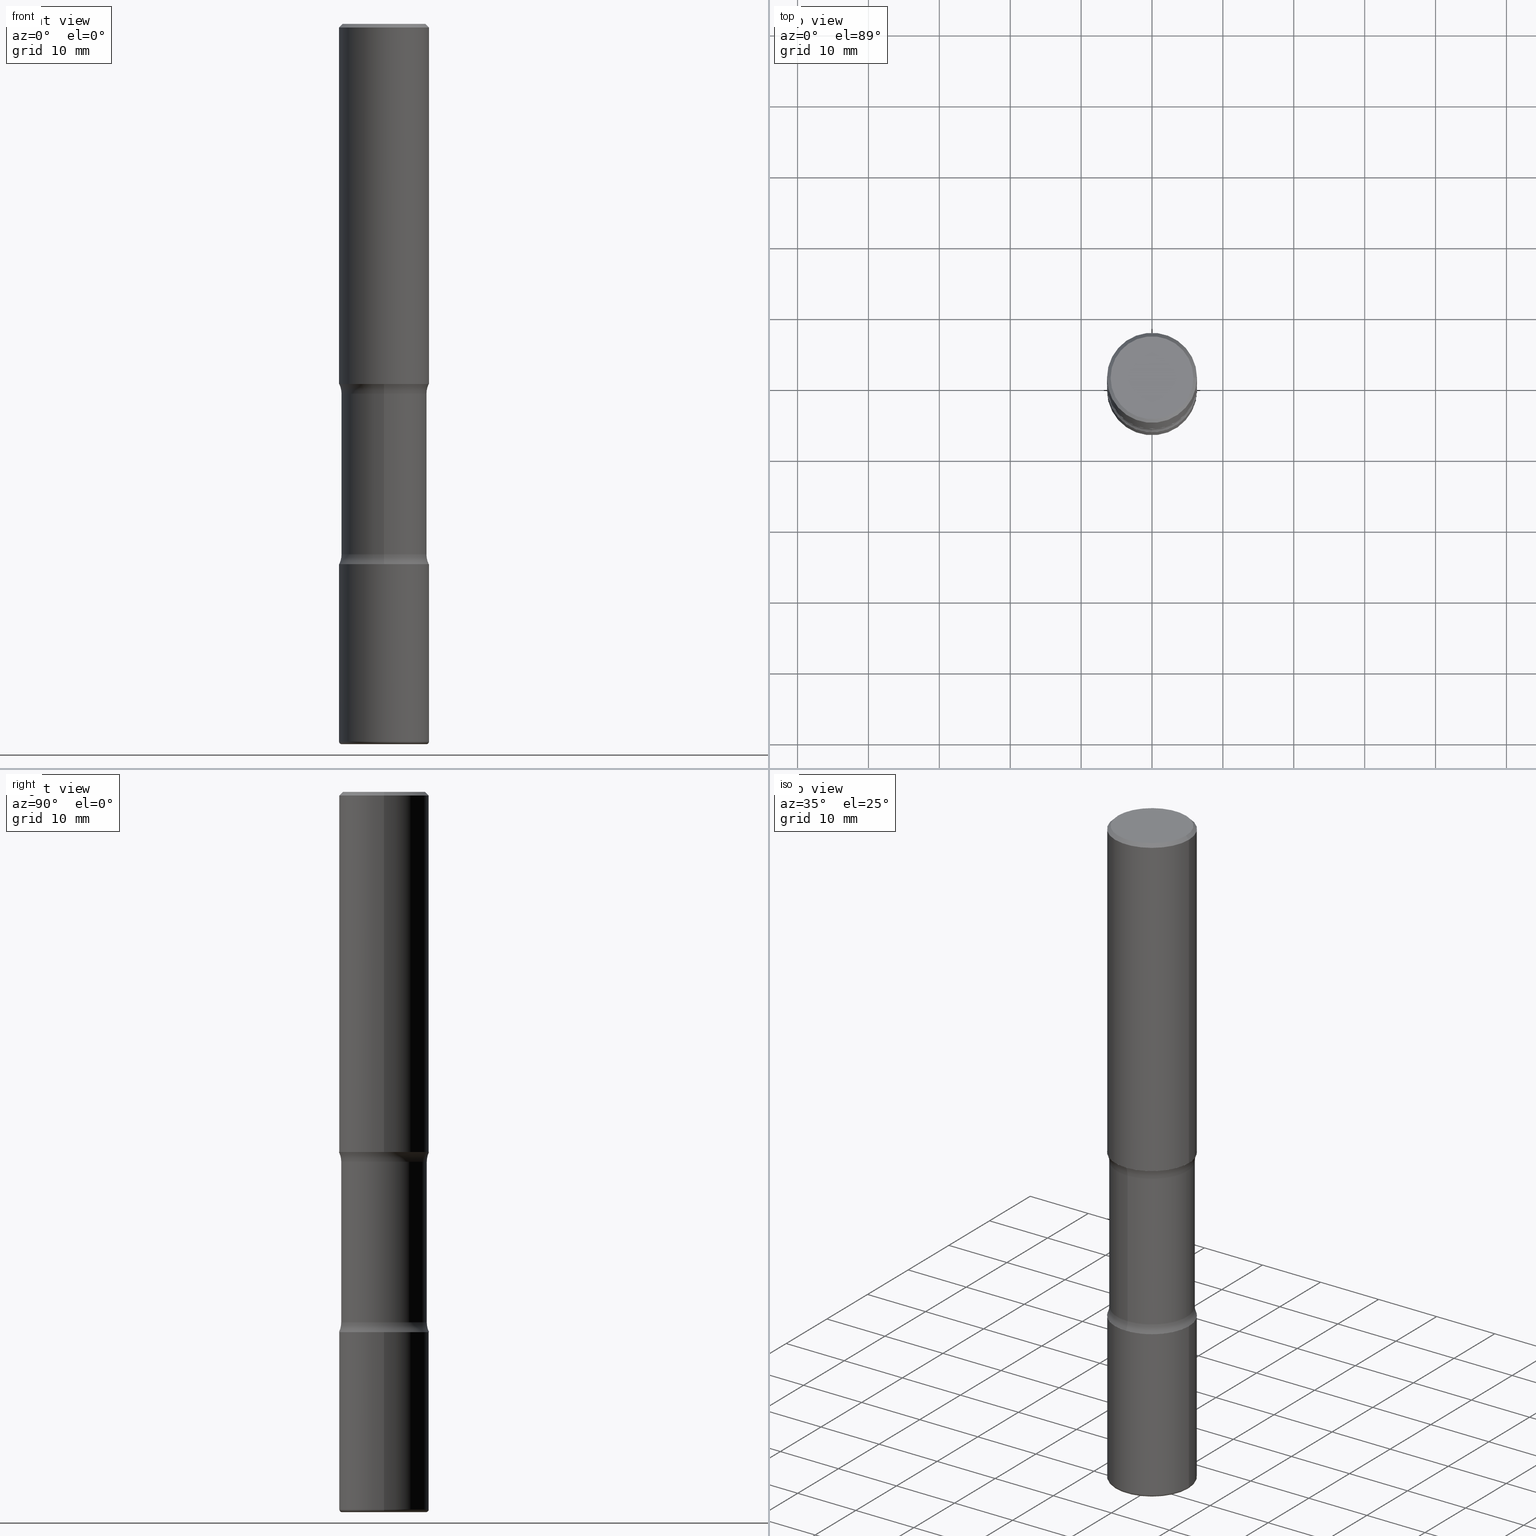
[diagram: canonical four-view strip — front | top / right | iso, engineering-drawing reading convention]
A machine part, canonical four-view strip (front | top / right | iso — engineering-drawing reading convention). The complete STEP part file that produces these views, byte-faithful:
ISO-10303-21;
HEADER;
FILE_DESCRIPTION (( 'STEP AP203' ),
    '1' );
FILE_NAME ('37874.STEP',
    '2024-03-02T00:57:38',
    ( '' ),
    ( '' ),
    'SwSTEP 2.0',
    'SolidWorks 2023',
    '' );
FILE_SCHEMA (( 'CONFIG_CONTROL_DESIGN' ));
ENDSEC;

DATA;
#1 = MANIFOLD_SOLID_BREP ( 'Body-Move/Copy2[4]', #127 ) ;
#2 = ORIENTED_EDGE ( 'NONE', *, *, #372, .T. ) ;
#3 = CARTESIAN_POINT ( 'NONE',  ( 7.203162026108633562E-29, -1.028420633753849345E-14, -2.945513763205741320 ) ) ;
#4 = EDGE_LOOP ( 'NONE', ( #295, #487 ) ) ;
#5 = CARTESIAN_POINT ( 'NONE',  ( 9.745193192647769069E-29, -1.391355313528993407E-14, -3.984999999999999876 ) ) ;
#6 = CARTESIAN_POINT ( 'NONE',  ( 4.890937612370289799E-31, -6.982962677686315028E-17, -0.02000000000000006981 ) ) ;
#7 = EDGE_LOOP ( 'NONE', ( #49, #353 ) ) ;
#8 = DIRECTION ( 'NONE',  ( 6.982962677686265133E-15, 1.000000000000000000, -2.300503573612010239E-15 ) ) ;
#9 = CARTESIAN_POINT ( 'NONE',  ( -0.2500000000000000555, 1.776356839400250859E-15, -1.229733772563726866E-29 ) ) ;
#10 = CIRCLE ( 'NONE', #166, 0.2500000000000003886 ) ;
#11 = ADVANCED_FACE ( 'NONE', ( #97 ), #377, .T. ) ;
#12 = VERTEX_POINT ( 'NONE', #188 ) ;
#13 = CC_DESIGN_APPROVAL ( #169, ( #401 ) ) ;
#14 = DIRECTION ( 'NONE',  ( 6.982962677686265133E-15, 1.000000000000000000, -2.300503573612010239E-15 ) ) ;
#15 = MECHANICAL_CONTEXT ( 'NONE', #539, 'mechanical' ) ;
#16 = ORIENTED_EDGE ( 'NONE', *, *, #181, .T. ) ;
#17 = ORIENTED_EDGE ( 'NONE', *, *, #351, .F. ) ;
#18 = EDGE_CURVE ( 'NONE', #55, #226, #100, .T. ) ;
#19 = AXIS2_PLACEMENT_3D ( 'NONE', #202, #198, #76 ) ;
#20 = ADVANCED_FACE ( 'NONE', ( #111 ), #194, .F. ) ;
#21 = SECURITY_CLASSIFICATION_LEVEL ( 'unclassified' ) ;
#22 = DIRECTION ( 'NONE',  ( 6.982962677686265922E-15, 1.000000000000000000, -3.369885892833230986E-15 ) ) ;
#23 = COORDINATED_UNIVERSAL_TIME_OFFSET ( 5, 0, .BEHIND. ) ;
#24 = CARTESIAN_POINT ( 'NONE',  ( 7.336406418555409790E-29, -1.047444401652943635E-14, -3.000000000000000444 ) ) ;
#25 = EDGE_CURVE ( 'NONE', #523, #381, #559, .T. ) ;
#26 = AXIS2_PLACEMENT_3D ( 'NONE', #307, #446, #453 ) ;
#27 = PERSON_AND_ORGANIZATION ( #412, #332 ) ;
#28 = CARTESIAN_POINT ( 'NONE',  ( 4.890937612370273194E-29, -6.982962677686291165E-15, -2.000000000000000000 ) ) ;
#29 = CARTESIAN_POINT ( 'NONE',  ( 7.198535619023675570E-29, -1.029083161580289368E-14, -2.945513763205741320 ) ) ;
#30 = PERSON_AND_ORGANIZATION ( #412, #332 ) ;
#31 = DIRECTION ( 'NONE',  ( -1.000000000000000000, 6.982962677686265922E-15, -4.883557194083112340E-29 ) ) ;
#32 = ORIENTED_EDGE ( 'NONE', *, *, #75, .F. ) ;
#33 = EDGE_CURVE ( 'NONE', #232, #40, #370, .T. ) ;
#34 = CARTESIAN_POINT ( 'NONE',  ( 4.890937612370273194E-29, -6.982962677686291165E-15, -2.000000000000000000 ) ) ;
#35 = DIRECTION ( 'NONE',  ( 7.105427357601001859E-15, 1.000000000000000000, -3.491481338843145583E-15 ) ) ;
#36 = CARTESIAN_POINT ( 'NONE',  ( -2.486930524192130572E-15, -0.3625000000000073164, -2.054486236794257792 ) ) ;
#37 = TOROIDAL_SURFACE ( 'NONE', #525, 0.3625000000000000999, 0.1250000000000000278 ) ;
#38 = DIRECTION ( 'NONE',  ( -2.445468806185136597E-29, 3.491481338843145583E-15, 1.000000000000000000 ) ) ;
#39 = FACE_OUTER_BOUND ( 'NONE', #4, .T. ) ;
#40 = VERTEX_POINT ( 'NONE', #267 ) ;
#41 = CARTESIAN_POINT ( 'NONE',  ( -0.2499999999999999167, 1.675911042644703182E-15, -0.02000000000000006981 ) ) ;
#42 = ADVANCED_FACE ( 'NONE', ( #458 ), #389, .F. ) ;
#43 = FACE_OUTER_BOUND ( 'NONE', #333, .T. ) ;
#44 = AXIS2_PLACEMENT_3D ( 'NONE', #29, #228, #407 ) ;
#45 = AXIS2_PLACEMENT_3D ( 'NONE', #5, #136, #486 ) ;
#46 = AXIS2_PLACEMENT_3D ( 'NONE', #93, #223, #302 ) ;
#47 = ORIENTED_EDGE ( 'NONE', *, *, #314, .T. ) ;
#48 = DIRECTION ( 'NONE',  ( -2.445468806185136597E-29, 3.491481338843145583E-15, 1.000000000000000000 ) ) ;
#49 = ORIENTED_EDGE ( 'NONE', *, *, #331, .F. ) ;
#50 = DIRECTION ( 'NONE',  ( 2.530378452311521502E-29, -3.369885892833230986E-15, -1.000000000000000000 ) ) ;
#51 = EDGE_CURVE ( 'NONE', #297, #151, #534, .T. ) ;
#52 = EDGE_LOOP ( 'NONE', ( #315, #439, #478, #344 ) ) ;
#53 = APPLICATION_PROTOCOL_DEFINITION ( 'international standard', 'config_control_design', 1994, #319 ) ;
#54 = CIRCLE ( 'NONE', #350, 0.1250000000000000000 ) ;
#55 = VERTEX_POINT ( 'NONE', #520 ) ;
#56 = LOCAL_TIME ( 19, 57, 38.00000000000000000, #364 ) ;
#57 = ORIENTED_EDGE ( 'NONE', *, *, #75, .T. ) ;
#58 = DIRECTION ( 'NONE',  ( 2.530378452311521502E-29, -3.369885892833230986E-15, -1.000000000000000000 ) ) ;
#59 = DIRECTION ( 'NONE',  ( 1.000000000000000000, 0.000000000000000000, 0.000000000000000000 ) ) ;
#60 = AXIS2_PLACEMENT_3D ( 'NONE', #219, #554, #345 ) ;
#61 = DIRECTION ( 'NONE',  ( 2.530378452311521502E-29, -3.369885892833230986E-15, -1.000000000000000000 ) ) ;
#62 = PERSON_AND_ORGANIZATION_ROLE ( 'creator' ) ;
#63 = DIRECTION ( 'NONE',  ( 6.982962677686265922E-15, 1.000000000000000000, -4.370956789862816416E-15 ) ) ;
#64 = EDGE_LOOP ( 'NONE', ( #87, #248, #135, #394 ) ) ;
#65 = VECTOR ( 'NONE', #325, 39.37007874015748143 ) ;
#66 = CIRCLE ( 'NONE', #252, 0.2500000000000002776 ) ;
#67 = DIRECTION ( 'NONE',  ( -6.982962677686266711E-15, -1.000000000000000000, 3.491481338843145583E-15 ) ) ;
#68 =( LENGTH_UNIT ( ) NAMED_UNIT ( * ) SI_UNIT ( $, .METRE. ) );
#69 = CC_DESIGN_PERSON_AND_ORGANIZATION_ASSIGNMENT ( #192, #62, ( #401 ) ) ;
#70 = COORDINATED_UNIVERSAL_TIME_OFFSET ( 5, 0, .BEHIND. ) ;
#71 = DIRECTION ( 'NONE',  ( -2.445468806185136597E-29, 3.491481338843145583E-15, 1.000000000000000000 ) ) ;
#72 = CARTESIAN_POINT ( 'NONE',  ( 1.745740669421641422E-15, 0.2499999999999897582, -3.000000000000000888 ) ) ;
#73 = ORIENTED_EDGE ( 'NONE', *, *, #513, .T. ) ;
#74 = DIRECTION ( 'NONE',  ( 1.000000000000000000, -6.982962677686267499E-15, 4.876176775795935793E-29 ) ) ;
#75 = EDGE_CURVE ( 'NONE', #226, #360, #442, .T. ) ;
#76 = DIRECTION ( 'NONE',  ( 1.000000000000000000, -6.982962677686267499E-15, 4.876176775795936353E-29 ) ) ;
#77 = DIRECTION ( 'NONE',  ( 2.445468806185136597E-29, -3.491481338843145583E-15, -1.000000000000000000 ) ) ;
#78 = ORIENTED_EDGE ( 'NONE', *, *, #558, .F. ) ;
#79 = CLOSED_SHELL ( 'NONE', ( #95, #11, #323, #452, #473, #20 ) ) ;
#80 = CARTESIAN_POINT ( 'NONE',  ( 0.2500000000000005551, -1.565929380471150390E-14, -3.984999999999999876 ) ) ;
#81 = AXIS2_PLACEMENT_3D ( 'NONE', #199, #162, #468 ) ;
#82 = CONICAL_SURFACE ( 'NONE', #536, 0.2499999999999999167, 0.7853981633974472798 ) ;
#83 = FACE_OUTER_BOUND ( 'NONE', #509, .T. ) ;
#84 = VERTEX_POINT ( 'NONE', #530 ) ;
#85 = CARTESIAN_POINT ( 'NONE',  ( 2.531323970661321775E-15, 0.3624999999999928280, -2.054486236794260012 ) ) ;
#86 = EDGE_CURVE ( 'NONE', #40, #475, #482, .T. ) ;
#87 = ORIENTED_EDGE ( 'NONE', *, *, #372, .F. ) ;
#88 = ORIENTED_EDGE ( 'NONE', *, *, #181, .F. ) ;
#89 = CIRCLE ( 'NONE', #81, 0.2499999999999999167 ) ;
#90 =( GEOMETRIC_REPRESENTATION_CONTEXT ( 3 ) GLOBAL_UNCERTAINTY_ASSIGNED_CONTEXT ( ( #309 ) ) GLOBAL_UNIT_ASSIGNED_CONTEXT ( ( #115, #335, #286 ) ) REPRESENTATION_CONTEXT ( 'NONE', 'WORKASPACE' ) );
#91 = DIRECTION ( 'NONE',  ( 1.000000000000000000, -6.982962677686265922E-15, 4.876176775795935793E-29 ) ) ;
#92 = ORIENTED_EDGE ( 'NONE', *, *, #104, .F. ) ;
#93 = CARTESIAN_POINT ( 'NONE',  ( 9.866784870866931853E-29, -1.384432990936266734E-14, -4.000000000000000000 ) ) ;
#94 = CARTESIAN_POINT ( 'NONE',  ( -0.2499999999999999167, 1.675911042644703182E-15, -0.02000000000000006981 ) ) ;
#95 = ADVANCED_FACE ( 'NONE', ( #402 ), #416, .T. ) ;
#96 = DIRECTION ( 'NONE',  ( -1.000000000000000000, 6.982962677686267499E-15, 0.000000000000000000 ) ) ;
#97 = FACE_OUTER_BOUND ( 'NONE', #52, .T. ) ;
#98 = ORIENTED_EDGE ( 'NONE', *, *, #104, .T. ) ;
#99 = DIRECTION ( 'NONE',  ( -6.982962677686265922E-15, -1.000000000000000000, 3.369885892833230592E-15 ) ) ;
#100 = CIRCLE ( 'NONE', #278, 0.2299999999999998990 ) ;
#101 = ORIENTED_EDGE ( 'NONE', *, *, #547, .F. ) ;
#102 = CARTESIAN_POINT ( 'NONE',  ( 9.866784870866931853E-29, -1.384432990936266734E-14, -4.000000000000000000 ) ) ;
#103 = CARTESIAN_POINT ( 'NONE',  ( 4.890937612370273194E-29, -6.982962677686291165E-15, -2.000000000000000000 ) ) ;
#104 = EDGE_CURVE ( 'NONE', #381, #523, #269, .T. ) ;
#105 = APPROVAL_STATUS ( 'not_yet_approved' ) ;
#106 = DIRECTION ( 'NONE',  ( 1.000000000000000000, -6.982962677686265133E-15, 4.883557194083112340E-29 ) ) ;
#107 = AXIS2_PLACEMENT_3D ( 'NONE', #273, #38, #508 ) ;
#108 = CIRCLE ( 'NONE', #292, 0.01500000000000038629 ) ;
#109 = CC_DESIGN_PERSON_AND_ORGANIZATION_ASSIGNMENT ( #507, #118, ( #187 ) ) ;
#110 = CALENDAR_DATE ( 2024, 1, 3 ) ;
#111 = FACE_OUTER_BOUND ( 'NONE', #491, .T. ) ;
#112 = CARTESIAN_POINT ( 'NONE',  ( 4.890937612370273194E-29, -6.982962677686291165E-15, -2.000000000000000000 ) ) ;
#113 = FACE_OUTER_BOUND ( 'NONE', #7, .T. ) ;
#114 = ADVANCED_FACE ( 'NONE', ( #113 ), #282, .F. ) ;
#115 =( CONVERSION_BASED_UNIT ( 'INCH', #347 ) LENGTH_UNIT ( ) NAMED_UNIT ( #177 ) );
#116 = AXIS2_PLACEMENT_3D ( 'NONE', #34, #548, #501 ) ;
#117 = AXIS2_PLACEMENT_3D ( 'NONE', #258, #160, #255 ) ;
#118 = PERSON_AND_ORGANIZATION_ROLE ( 'classification_officer' ) ;
#119 = CARTESIAN_POINT ( 'NONE',  ( 0.000000000000000000, 0.000000000000000000, 0.000000000000000000 ) ) ;
#120 = CARTESIAN_POINT ( 'NONE',  ( 1.606081415867840476E-15, 0.2299999999999998990, -8.030407079339231961E-16 ) ) ;
#121 = ORIENTED_EDGE ( 'NONE', *, *, #540, .T. ) ;
#122 = DIRECTION ( 'NONE',  ( 6.982962677686265922E-15, 1.000000000000000000, -3.369885892833230986E-15 ) ) ;
#123 = DIRECTION ( 'NONE',  ( 1.000000000000000000, -6.982962677686268288E-15, 0.000000000000000000 ) ) ;
#124 = ORIENTED_EDGE ( 'NONE', *, *, #348, .F. ) ;
#125 = DIRECTION ( 'NONE',  ( 2.530378452311521502E-29, -3.369885892833230986E-15, -1.000000000000000000 ) ) ;
#126 = DIRECTION ( 'NONE',  ( -1.000000000000000000, 7.105427357601066545E-15, 0.000000000000000000 ) ) ;
#127 = CLOSED_SHELL ( 'NONE', ( #441, #418, #42, #358, #114, #459, #304, #437 ) ) ;
#128 = CARTESIAN_POINT ( 'NONE',  ( 0.2500000000000000555, -1.745740669421567269E-15, 1.219044193948984228E-29 ) ) ;
#129 = EDGE_CURVE ( 'NONE', #55, #12, #159, .T. ) ;
#130 = LOCAL_TIME ( 19, 57, 38.00000000000000000, #23 ) ;
#131 = ORIENTED_EDGE ( 'NONE', *, *, #196, .T. ) ;
#132 = ORIENTED_EDGE ( 'NONE', *, *, #249, .F. ) ;
#133 = EDGE_LOOP ( 'NONE', ( #209, #47, #220, #101 ) ) ;
#134 = AXIS2_PLACEMENT_3D ( 'NONE', #6, #470, #296 ) ;
#135 = ORIENTED_EDGE ( 'NONE', *, *, #387, .T. ) ;
#136 = DIRECTION ( 'NONE',  ( -2.445468806185136597E-29, 3.491481338843145583E-15, 1.000000000000000000 ) ) ;
#137 = PERSON_AND_ORGANIZATION_ROLE ( 'design_owner' ) ;
#138 = ORIENTED_EDGE ( 'NONE', *, *, #33, .F. ) ;
#139 = DIRECTION ( 'NONE',  ( 2.530378452311521502E-29, -3.369885892833230986E-15, -1.000000000000000000 ) ) ;
#140 = DIRECTION ( 'NONE',  ( 0.000000000000000000, 0.000000000000000000, 1.000000000000000000 ) ) ;
#141 = AXIS2_PLACEMENT_3D ( 'NONE', #339, #168, #386 ) ;
#142 = ORIENTED_EDGE ( 'NONE', *, *, #33, .T. ) ;
#143 = CIRCLE ( 'NONE', #178, 0.2500000000000003886 ) ;
#144 = DIRECTION ( 'NONE',  ( 2.438088387897960049E-29, -3.491481338843145188E-15, -1.000000000000000000 ) ) ;
#145 = EDGE_CURVE ( 'NONE', #483, #297, #506, .T. ) ;
#146 = DATE_AND_TIME ( #497, #217 ) ;
#147 = AXIS2_PLACEMENT_3D ( 'NONE', #28, #503, #91 ) ;
#148 = CIRCLE ( 'NONE', #428, 0.2350000000000003753 ) ;
#149 = CARTESIAN_POINT ( 'NONE',  ( 0.2500000000000003331, -1.745740669421569044E-15, 1.219044193948985630E-29 ) ) ;
#150 = PRODUCT_DEFINITION_SHAPE ( 'NONE', 'NONE',  #401 ) ;
#151 = VERTEX_POINT ( 'NONE', #330 ) ;
#152 = EDGE_CURVE ( 'NONE', #360, #12, #89, .T. ) ;
#153 = FACE_OUTER_BOUND ( 'NONE', #448, .T. ) ;
#154 = DIRECTION ( 'NONE',  ( -2.445468806185136597E-29, 3.491481338843145583E-15, 1.000000000000000000 ) ) ;
#155 = CARTESIAN_POINT ( 'NONE',  ( -0.2500000000000001665, -1.750039312831323809E-15, -2.000000000000000000 ) ) ;
#156 = ORIENTED_EDGE ( 'NONE', *, *, #86, .T. ) ;
#157 = CIRCLE ( 'NONE', #281, 0.2500000000000002776 ) ;
#158 = CC_DESIGN_SECURITY_CLASSIFICATION ( #187, ( #321 ) ) ;
#159 = LINE ( 'NONE', #545, #517 ) ;
#160 = DIRECTION ( 'NONE',  ( 2.445468806185136597E-29, -3.491481338843145583E-15, -1.000000000000000000 ) ) ;
#161 = FACE_OUTER_BOUND ( 'NONE', #173, .T. ) ;
#162 = DIRECTION ( 'NONE',  ( -2.445468806185136597E-29, 3.491481338843145583E-15, 1.000000000000000000 ) ) ;
#163 = CARTESIAN_POINT ( 'NONE',  ( 7.198535619023675570E-29, -1.029083161580289368E-14, -2.945513763205741320 ) ) ;
#164 = ORIENTED_EDGE ( 'NONE', *, *, #25, .F. ) ;
#165 = DIRECTION ( 'NONE',  ( -6.982962677686266711E-15, -1.000000000000000000, 0.000000000000000000 ) ) ;
#166 = AXIS2_PLACEMENT_3D ( 'NONE', #455, #61, #324 ) ;
#167 = ORIENTED_EDGE ( 'NONE', *, *, #513, .F. ) ;
#168 = DIRECTION ( 'NONE',  ( 2.438088387897960049E-29, -3.491481338843145188E-15, -1.000000000000000000 ) ) ;
#169 = APPROVAL ( #355, 'UNSPECIFIED' ) ;
#170 = VERTEX_POINT ( 'NONE', #238 ) ;
#171 = CYLINDRICAL_SURFACE ( 'NONE', #397, 0.2500000000000000555 ) ;
#172 = CARTESIAN_POINT ( 'NONE',  ( 1.658453635950538436E-15, 0.2374999999999928557, -2.054486236794259568 ) ) ;
#173 = EDGE_LOOP ( 'NONE', ( #98, #376, #17, #124 ) ) ;
#174 = EDGE_CURVE ( 'NONE', #444, #385, #414, .T. ) ;
#175 = DIRECTION ( 'NONE',  ( 2.530378452311521502E-29, -3.369885892833230986E-15, -1.000000000000000000 ) ) ;
#176 = AXIS2_PLACEMENT_3D ( 'NONE', #85, #210, #165 ) ;
#177 = DIMENSIONAL_EXPONENTS ( 1.000000000000000000, 0.000000000000000000, 0.000000000000000000, 0.000000000000000000, 0.000000000000000000, 0.000000000000000000, 0.000000000000000000 ) ;
#178 = AXIS2_PLACEMENT_3D ( 'NONE', #438, #48, #440 ) ;
#179 = ORIENTED_EDGE ( 'NONE', *, *, #314, .F. ) ;
#180 = ORIENTED_EDGE ( 'NONE', *, *, #275, .F. ) ;
#181 = EDGE_CURVE ( 'NONE', #483, #183, #66, .T. ) ;
#182 = MANIFOLD_SOLID_BREP ( 'Body-Move/Copy2[2]', #366 ) ;
#183 = VERTEX_POINT ( 'NONE', #419 ) ;
#184 = DIRECTION ( 'NONE',  ( 6.982962677686265133E-15, 1.000000000000000000, -3.450755360418014766E-15 ) ) ;
#185 = MANIFOLD_SOLID_BREP ( 'Body-Move/Copy2[1]', #79 ) ;
#186 = CIRCLE ( 'NONE', #176, 0.1250000000000000000 ) ;
#187 = SECURITY_CLASSIFICATION ( '', '', #21 ) ;
#188 = CARTESIAN_POINT ( 'NONE',  ( 0.2499999999999999167, -1.784954126219745400E-15, -0.02000000000000006981 ) ) ;
#189 = EDGE_CURVE ( 'NONE', #444, #346, #367, .T. ) ;
#190 = CARTESIAN_POINT ( 'NONE',  ( 0.000000000000000000, 0.000000000000000000, 0.000000000000000000 ) ) ;
#191 = APPROVAL_ROLE ( '' ) ;
#192 = PERSON_AND_ORGANIZATION ( #412, #332 ) ;
#193 = DIRECTION ( 'NONE',  ( 1.000000000000000000, -6.982962677686266711E-15, 4.876176775795935793E-29 ) ) ;
#194 = PLANE ( 'NONE',  #413 ) ;
#195 = AXIS2_PLACEMENT_3D ( 'NONE', #190, #140, #59 ) ;
#196 = EDGE_CURVE ( 'NONE', #475, #40, #157, .T. ) ;
#197 = APPROVAL_ROLE ( '' ) ;
#198 = DIRECTION ( 'NONE',  ( -2.445468806185136597E-29, 3.491481338843145583E-15, 1.000000000000000000 ) ) ;
#199 = CARTESIAN_POINT ( 'NONE',  ( 4.890937612370289799E-31, -6.982962677686315028E-17, -0.02000000000000006981 ) ) ;
#200 = DIRECTION ( 'NONE',  ( 2.438088387897960049E-29, -3.491481338843145188E-15, -1.000000000000000000 ) ) ;
#201 = ORIENTED_EDGE ( 'NONE', *, *, #189, .F. ) ;
#202 = CARTESIAN_POINT ( 'NONE',  ( 0.000000000000000000, 0.000000000000000000, 0.000000000000000000 ) ) ;
#203 = CARTESIAN_POINT ( 'NONE',  ( -2.486930524192108484E-15, -0.3625000000000104250, -2.945513763205740432 ) ) ;
#204 = TOROIDAL_SURFACE ( 'NONE', #445, 0.3625000000000000999, 0.1250000000000000278 ) ;
#205 = DIRECTION ( 'NONE',  ( 2.530378452311521502E-29, -3.369885892833230986E-15, -1.000000000000000000 ) ) ;
#206 = LINE ( 'NONE', #149, #543 ) ;
#207 = CC_DESIGN_PERSON_AND_ORGANIZATION_ASSIGNMENT ( #30, #329, ( #321 ) ) ;
#208 = CYLINDRICAL_SURFACE ( 'NONE', #398, 0.2500000000000003331 ) ;
#209 = ORIENTED_EDGE ( 'NONE', *, *, #449, .T. ) ;
#210 = DIRECTION ( 'NONE',  ( -1.000000000000000000, 6.982962677686265922E-15, -4.883557194083112340E-29 ) ) ;
#211 = EDGE_LOOP ( 'NONE', ( #179, #225, #421, #430 ) ) ;
#212 = EDGE_CURVE ( 'NONE', #226, #55, #216, .T. ) ;
#213 = DIRECTION ( 'NONE',  ( 6.982962677686265922E-15, 1.000000000000000000, -3.369885892833230986E-15 ) ) ;
#214 = AXIS2_PLACEMENT_3D ( 'NONE', #236, #417, #22 ) ;
#215 = ADVANCED_FACE ( 'NONE', ( #422 ), #379, .T. ) ;
#216 = CIRCLE ( 'NONE', #19, 0.2299999999999998990 ) ;
#217 = LOCAL_TIME ( 19, 57, 38.00000000000000000, #70 ) ;
#218 = ORIENTED_EDGE ( 'NONE', *, *, #196, .F. ) ;
#219 = CARTESIAN_POINT ( 'NONE',  ( 4.806027966243888288E-29, -7.104558123696206156E-15, -2.000000000000000000 ) ) ;
#220 = ORIENTED_EDGE ( 'NONE', *, *, #51, .F. ) ;
#221 = CARTESIAN_POINT ( 'NONE',  ( -1.715124499442836348E-15, -0.2500000000000074385, -1.999999999999999112 ) ) ;
#222 = ORIENTED_EDGE ( 'NONE', *, *, #152, .T. ) ;
#223 = DIRECTION ( 'NONE',  ( 2.530378452311521502E-29, -3.369885892833230986E-15, -1.000000000000000000 ) ) ;
#224 = AXIS2_PLACEMENT_3D ( 'NONE', #374, #154, #123 ) ;
#225 = ORIENTED_EDGE ( 'NONE', *, *, #393, .T. ) ;
#226 = VERTEX_POINT ( 'NONE', #555 ) ;
#227 = CARTESIAN_POINT ( 'NONE',  ( 4.943898765775623630E-29, -7.288170524422749615E-15, -2.054486236794258680 ) ) ;
#228 = DIRECTION ( 'NONE',  ( 2.530378452311521502E-29, -3.369885892833230986E-15, -1.000000000000000000 ) ) ;
#229 = VECTOR ( 'NONE', #247, 39.37007874015748143 ) ;
#230 = CALENDAR_DATE ( 2024, 1, 3 ) ;
#231 = DIRECTION ( 'NONE',  ( 1.000000000000000000, -6.982962677686265922E-15, 0.000000000000000000 ) ) ;
#232 = VERTEX_POINT ( 'NONE', #549 ) ;
#233 = CARTESIAN_POINT ( 'NONE',  ( 7.336406418555409790E-29, -1.047444401652943635E-14, -3.000000000000000444 ) ) ;
#234 = DATE_AND_TIME ( #276, #56 ) ;
#235 = PLANE ( 'NONE',  #147 ) ;
#236 = CARTESIAN_POINT ( 'NONE',  ( 4.976491023364875751E-29, -7.241496556518841686E-15, -2.054486236794258680 ) ) ;
#237 = CIRCLE ( 'NONE', #60, 0.2500000000000003886 ) ;
#238 = CARTESIAN_POINT ( 'NONE',  ( 1.745740669421617165E-15, 0.2499999999999933109, -2.000000000000000888 ) ) ;
#239 = DIRECTION ( 'NONE',  ( 2.530378452311521502E-29, -3.369885892833230986E-15, -1.000000000000000000 ) ) ;
#240 = CARTESIAN_POINT ( 'NONE',  ( 4.890937612370289799E-31, -6.982962677686315028E-17, -0.02000000000000006981 ) ) ;
#241 = CARTESIAN_POINT ( 'NONE',  ( 0.000000000000000000, 0.000000000000000000, 0.000000000000000000 ) ) ;
#242 = EDGE_CURVE ( 'NONE', #385, #232, #560, .T. ) ;
#243 = DESIGN_CONTEXT ( 'detailed design', #319, 'design' ) ;
#244 = DIRECTION ( 'NONE',  ( -2.445468806185136597E-29, 3.491481338843145583E-15, 1.000000000000000000 ) ) ;
#245 = AXIS2_PLACEMENT_3D ( 'NONE', #306, #488, #99 ) ;
#246 = VECTOR ( 'NONE', #553, 39.37007874015748143 ) ;
#247 = DIRECTION ( 'NONE',  ( -2.445468806185136877E-29, 3.491481338843145188E-15, 1.000000000000000000 ) ) ;
#248 = ORIENTED_EDGE ( 'NONE', *, *, #449, .F. ) ;
#249 = EDGE_CURVE ( 'NONE', #385, #475, #206, .T. ) ;
#250 = CARTESIAN_POINT ( 'NONE',  ( 1.658453635950560525E-15, 0.2374999999999897748, -2.945513763205741764 ) ) ;
#251 = ORIENTED_EDGE ( 'NONE', *, *, #249, .T. ) ;
#252 = AXIS2_PLACEMENT_3D ( 'NONE', #426, #239, #410 ) ;
#253 = FACE_OUTER_BOUND ( 'NONE', #341, .T. ) ;
#254 = CIRCLE ( 'NONE', #447, 0.2375000000000000722 ) ;
#255 = DIRECTION ( 'NONE',  ( -1.000000000000000000, 6.982962677686267499E-15, 0.000000000000000000 ) ) ;
#256 = ORIENTED_EDGE ( 'NONE', *, *, #242, .T. ) ;
#257 = DIRECTION ( 'NONE',  ( -0.7071067811865467956, 2.468850131082249172E-15, -0.7071067811865482389 ) ) ;
#258 = CARTESIAN_POINT ( 'NONE',  ( 4.890937612370289799E-31, -6.982962677686315028E-17, -0.02000000000000006981 ) ) ;
#259 = LINE ( 'NONE', #9, #229 ) ;
#260 = ORIENTED_EDGE ( 'NONE', *, *, #18, .F. ) ;
#261 = FACE_OUTER_BOUND ( 'NONE', #356, .T. ) ;
#262 = EDGE_CURVE ( 'NONE', #494, #170, #10, .T. ) ;
#263 = ORIENTED_EDGE ( 'NONE', *, *, #152, .F. ) ;
#264 = AXIS2_PLACEMENT_3D ( 'NONE', #516, #139, #495 ) ;
#265 = APPROVAL_PERSON_ORGANIZATION ( #363, #365, #191 ) ;
#266 = EDGE_LOOP ( 'NONE', ( #16, #349 ) ) ;
#267 = CARTESIAN_POINT ( 'NONE',  ( -0.2500000000000002776, -1.041764173650943238E-14, -3.000000000000000444 ) ) ;
#268 = CC_DESIGN_PERSON_AND_ORGANIZATION_ASSIGNMENT ( #489, #137, ( #477 ) ) ;
#269 = CIRCLE ( 'NONE', #116, 0.2500000000000001665 ) ;
#270 = DATE_AND_TIME ( #493, #518 ) ;
#271 = DIRECTION ( 'NONE',  ( -2.445468806185136597E-29, 3.491481338843145583E-15, 1.000000000000000000 ) ) ;
#272 = DATE_AND_TIME ( #110, #343 ) ;
#273 = CARTESIAN_POINT ( 'NONE',  ( 9.745193192647769069E-29, -1.391355313528993407E-14, -3.984999999999999876 ) ) ;
#274 = CARTESIAN_POINT ( 'NONE',  ( 0.000000000000000000, 0.000000000000000000, 0.000000000000000000 ) ) ;
#275 = EDGE_CURVE ( 'NONE', #183, #483, #291, .T. ) ;
#276 = CALENDAR_DATE ( 2024, 1, 3 ) ;
#277 = DIRECTION ( 'NONE',  ( 1.000000000000000000, -6.982962677686267499E-15, 4.876176775795935793E-29 ) ) ;
#278 = AXIS2_PLACEMENT_3D ( 'NONE', #274, #271, #318 ) ;
#279 = TOROIDAL_SURFACE ( 'NONE', #45, 0.2350000000000003753, 0.01500000000000040364 ) ;
#280 = DIRECTION ( 'NONE',  ( 6.982962677686265922E-15, 1.000000000000000000, -3.369885892833230592E-15 ) ) ;
#281 = AXIS2_PLACEMENT_3D ( 'NONE', #24, #71, #285 ) ;
#282 = PLANE ( 'NONE',  #472 ) ;
#283 = FACE_OUTER_BOUND ( 'NONE', #512, .T. ) ;
#284 = ADVANCED_FACE ( 'NONE', ( #153 ), #235, .F. ) ;
#285 = DIRECTION ( 'NONE',  ( 1.000000000000000000, -6.982962677686270655E-15, 0.000000000000000000 ) ) ;
#286 =( NAMED_UNIT ( * ) SI_UNIT ( $, .STERADIAN. ) SOLID_ANGLE_UNIT ( ) );
#287 = ORIENTED_EDGE ( 'NONE', *, *, #212, .F. ) ;
#288 = CARTESIAN_POINT ( 'NONE',  ( 7.203162026108633562E-29, -1.028420633753849345E-14, -2.945513763205741320 ) ) ;
#289 = CARTESIAN_POINT ( 'NONE',  ( 0.2500000000000001665, -8.728703347107858632E-15, -2.000000000000000000 ) ) ;
#290 = DIRECTION ( 'NONE',  ( 1.000000000000000000, -6.860497997771530774E-15, 4.842287994361612002E-29 ) ) ;
#291 = CIRCLE ( 'NONE', #535, 0.2500000000000002776 ) ;
#292 = AXIS2_PLACEMENT_3D ( 'NONE', #423, #35, #126 ) ;
#293 = DIRECTION ( 'NONE',  ( 2.530378452311521502E-29, -3.369885892833230986E-15, -1.000000000000000000 ) ) ;
#294 = EDGE_CURVE ( 'NONE', #523, #360, #259, .T. ) ;
#295 = ORIENTED_EDGE ( 'NONE', *, *, #212, .T. ) ;
#296 = DIRECTION ( 'NONE',  ( 1.000000000000000000, -6.982962677686267499E-15, 0.000000000000000000 ) ) ;
#297 = VERTEX_POINT ( 'NONE', #250 ) ;
#298 = DIRECTION ( 'NONE',  ( 6.982962677686265922E-15, 1.000000000000000000, -3.369885892833230986E-15 ) ) ;
#299 = VECTOR ( 'NONE', #257, 39.37007874015748143 ) ;
#300 = APPROVAL_PERSON_ORGANIZATION ( #399, #169, #359 ) ;
#301 = ORIENTED_EDGE ( 'NONE', *, *, #505, .F. ) ;
#302 = DIRECTION ( 'NONE',  ( 6.982962677686265133E-15, 1.000000000000000000, -2.300503573612010239E-15 ) ) ;
#303 = CC_DESIGN_PERSON_AND_ORGANIZATION_ASSIGNMENT ( #27, #463, ( #321 ) ) ;
#304 = ADVANCED_FACE ( 'NONE', ( #253 ), #37, .F. ) ;
#305 = ORIENTED_EDGE ( 'NONE', *, *, #174, .T. ) ;
#306 = CARTESIAN_POINT ( 'NONE',  ( 7.336406418555409790E-29, -1.047444401652943635E-14, -3.000000000000000444 ) ) ;
#307 = CARTESIAN_POINT ( 'NONE',  ( 7.336406418555409790E-29, -1.047444401652943635E-14, -3.000000000000000444 ) ) ;
#308 = PRODUCT_RELATED_PRODUCT_CATEGORY ( 'detail', '', ( #477 ) ) ;
#309 = UNCERTAINTY_MEASURE_WITH_UNIT (LENGTH_MEASURE( 1.000000000000000082E-05 ), #115, 'distance_accuracy_value', 'NONE');
#310 = APPLICATION_PROTOCOL_DEFINITION ( 'international standard', 'config_control_design', 1994, #539 ) ;
#311 = ORIENTED_EDGE ( 'NONE', *, *, #25, .T. ) ;
#312 = AXIS2_PLACEMENT_3D ( 'NONE', #429, #293, #122 ) ;
#313 = CC_DESIGN_APPROVAL ( #408, ( #321 ) ) ;
#314 = EDGE_CURVE ( 'NONE', #84, #151, #388, .T. ) ;
#315 = ORIENTED_EDGE ( 'NONE', *, *, #189, .T. ) ;
#316 = DIRECTION ( 'NONE',  ( -1.000000000000000000, 6.982962677686265922E-15, -4.876176775795935793E-29 ) ) ;
#317 = APPROVAL_DATE_TIME ( #270, #169 ) ;
#318 = DIRECTION ( 'NONE',  ( 1.000000000000000000, -6.982962677686267499E-15, 4.876176775795936353E-29 ) ) ;
#319 = APPLICATION_CONTEXT ( 'configuration controlled 3d designs of mechanical parts and assemblies' ) ;
#320 = VECTOR ( 'NONE', #382, 39.37007874015748143 ) ;
#321 = PRODUCT_DEFINITION_FORMATION_WITH_SPECIFIED_SOURCE ( 'ANY', '', #477, .NOT_KNOWN. ) ;
#322 = DATE_TIME_ROLE ( 'creation_date' ) ;
#323 = ADVANCED_FACE ( 'NONE', ( #43 ), #424, .T. ) ;
#324 = DIRECTION ( 'NONE',  ( 6.982962677686265133E-15, 1.000000000000000000, -3.278217592397110735E-15 ) ) ;
#325 = DIRECTION ( 'NONE',  ( -2.445468806185136877E-29, 3.491481338843145188E-15, 1.000000000000000000 ) ) ;
#326 = EDGE_LOOP ( 'NONE', ( #521, #311, #469, #263 ) ) ;
#327 = DATE_AND_TIME ( #230, #130 ) ;
#328 = CARTESIAN_POINT ( 'NONE',  ( 2.531323970661343863E-15, 0.3624999999999897748, -2.945513763205742652 ) ) ;
#329 = PERSON_AND_ORGANIZATION_ROLE ( 'design_supplier' ) ;
#330 = CARTESIAN_POINT ( 'NONE',  ( -1.672246386956739071E-15, -0.2375000000000103417, -2.945513763205740876 ) ) ;
#331 = EDGE_CURVE ( 'NONE', #170, #494, #237, .T. ) ;
#332 = ORGANIZATION ( 'UNSPECIFIED', 'UNSPECIFIED', '' ) ;
#333 = EDGE_LOOP ( 'NONE', ( #201, #167 ) ) ;
#334 = DIRECTION ( 'NONE',  ( 1.000000000000000000, -6.982962677686217012E-15, 0.000000000000000000 ) ) ;
#335 =( NAMED_UNIT ( * ) PLANE_ANGLE_UNIT ( ) SI_UNIT ( $, .RADIAN. ) );
#336 = ORIENTED_EDGE ( 'NONE', *, *, #86, .F. ) ;
#337 = DIRECTION ( 'NONE',  ( 1.000000000000000000, -6.860497997771530774E-15, 4.842287994361612002E-29 ) ) ;
#338 = CARTESIAN_POINT ( 'NONE',  ( 0.000000000000000000, 0.000000000000000000, 0.000000000000000000 ) ) ;
#339 = CARTESIAN_POINT ( 'NONE',  ( 3.287784133380669782E-29, -2.326583341891048903E-14, -4.000000000000000000 ) ) ;
#340 = AXIS2_PLACEMENT_3D ( 'NONE', #411, #538, #106 ) ;
#341 = EDGE_LOOP ( 'NONE', ( #460, #88, #542, #532 ) ) ;
#342 = CIRCLE ( 'NONE', #264, 0.2375000000000001277 ) ;
#343 = LOCAL_TIME ( 19, 57, 38.00000000000000000, #541 ) ;
#344 = ORIENTED_EDGE ( 'NONE', *, *, #174, .F. ) ;
#345 = DIRECTION ( 'NONE',  ( 6.982962677686265133E-15, 1.000000000000000000, -3.278217592397110735E-15 ) ) ;
#346 = VERTEX_POINT ( 'NONE', #476 ) ;
#347 = LENGTH_MEASURE_WITH_UNIT ( LENGTH_MEASURE( 0.02539999999999999897 ), #68 );
#348 = EDGE_CURVE ( 'NONE', #381, #12, #522, .T. ) ;
#349 = ORIENTED_EDGE ( 'NONE', *, *, #275, .T. ) ;
#350 = AXIS2_PLACEMENT_3D ( 'NONE', #36, #337, #514 ) ;
#351 = EDGE_CURVE ( 'NONE', #12, #360, #361, .T. ) ;
#352 = PLANE ( 'NONE',  #435 ) ;
#353 = ORIENTED_EDGE ( 'NONE', *, *, #262, .F. ) ;
#354 = FACE_OUTER_BOUND ( 'NONE', #266, .T. ) ;
#355 = APPROVAL_STATUS ( 'not_yet_approved' ) ;
#356 = EDGE_LOOP ( 'NONE', ( #180, #515, #121, #528 ) ) ;
#357 = CYLINDRICAL_SURFACE ( 'NONE', #46, 0.2375000000000000999 ) ;
#358 = ADVANCED_FACE ( 'NONE', ( #481 ), #451, .F. ) ;
#359 = APPROVAL_ROLE ( '' ) ;
#360 = VERTEX_POINT ( 'NONE', #41 ) ;
#361 = CIRCLE ( 'NONE', #134, 0.2499999999999999167 ) ;
#362 = ADVANCED_FACE ( 'NONE', ( #161 ), #171, .T. ) ;
#363 = PERSON_AND_ORGANIZATION ( #412, #332 ) ;
#364 = COORDINATED_UNIVERSAL_TIME_OFFSET ( 5, 0, .BEHIND. ) ;
#365 = APPROVAL ( #105, 'UNSPECIFIED' ) ;
#366 = CLOSED_SHELL ( 'NONE', ( #362, #490, #552, #479, #284, #215 ) ) ;
#367 = CIRCLE ( 'NONE', #224, 0.2350000000000003753 ) ;
#368 = APPROVAL_PERSON_ORGANIZATION ( #373, #408, #197 ) ;
#369 = DIRECTION ( 'NONE',  ( 2.530378452311521502E-29, -3.369885892833230592E-15, -1.000000000000000000 ) ) ;
#370 = LINE ( 'NONE', #546, #65 ) ;
#371 = DIRECTION ( 'NONE',  ( -6.982962677686265133E-15, -1.000000000000000000, 0.000000000000000000 ) ) ;
#372 = EDGE_CURVE ( 'NONE', #84, #494, #54, .T. ) ;
#373 = PERSON_AND_ORGANIZATION ( #412, #332 ) ;
#374 = CARTESIAN_POINT ( 'NONE',  ( 9.781875224740547508E-29, -1.396592535537258391E-14, -4.000000000000000888 ) ) ;
#375 = CARTESIAN_POINT ( 'NONE',  ( 9.781875224740547508E-29, -1.396592535537258391E-14, -4.000000000000000888 ) ) ;
#376 = ORIENTED_EDGE ( 'NONE', *, *, #294, .T. ) ;
#377 = TOROIDAL_SURFACE ( 'NONE', #340, 0.2350000000000003753, 0.01500000000000040364 ) ;
#378 = AXIS2_PLACEMENT_3D ( 'NONE', #119, #502, #193 ) ;
#379 = CYLINDRICAL_SURFACE ( 'NONE', #425, 0.2500000000000000555 ) ;
#380 = DIRECTION ( 'NONE',  ( 6.860497997771532351E-15, 1.000000000000000000, 0.000000000000000000 ) ) ;
#381 = VERTEX_POINT ( 'NONE', #289 ) ;
#382 = DIRECTION ( 'NONE',  ( -2.445468806185136877E-29, 3.491481338843145188E-15, 1.000000000000000000 ) ) ;
#383 = DIRECTION ( 'NONE',  ( -2.445468806185136877E-29, 3.491481338843145188E-15, 1.000000000000000000 ) ) ;
#384 = DIRECTION ( 'NONE',  ( 1.000000000000000000, -6.982962677686268288E-15, 0.000000000000000000 ) ) ;
#385 = VERTEX_POINT ( 'NONE', #80 ) ;
#386 = DIRECTION ( 'NONE',  ( -1.000000000000000000, 6.982962677686265922E-15, -4.876176775795935793E-29 ) ) ;
#387 = EDGE_CURVE ( 'NONE', #556, #170, #186, .T. ) ;
#388 = LINE ( 'NONE', #432, #492 ) ;
#389 = TOROIDAL_SURFACE ( 'NONE', #214, 0.3625000000000000999, 0.1250000000000000000 ) ;
#390 = AXIS2_PLACEMENT_3D ( 'NONE', #328, #31, #371 ) ;
#391 = AXIS2_PLACEMENT_3D ( 'NONE', #203, #290, #380 ) ;
#392 = EDGE_LOOP ( 'NONE', ( #301, #73, #305, #78 ) ) ;
#393 = EDGE_CURVE ( 'NONE', #84, #556, #342, .T. ) ;
#394 = ORIENTED_EDGE ( 'NONE', *, *, #331, .T. ) ;
#395 = CYLINDRICAL_SURFACE ( 'NONE', #498, 0.2375000000000000999 ) ;
#396 = EDGE_LOOP ( 'NONE', ( #256, #142, #218, #132 ) ) ;
#397 = AXIS2_PLACEMENT_3D ( 'NONE', #241, #467, #74 ) ;
#398 = AXIS2_PLACEMENT_3D ( 'NONE', #338, #484, #427 ) ;
#399 = PERSON_AND_ORGANIZATION ( #412, #332 ) ;
#400 = ORIENTED_EDGE ( 'NONE', *, *, #393, .F. ) ;
#401 = PRODUCT_DEFINITION ( 'UNKNOWN', '', #321, #243 ) ;
#402 = FACE_OUTER_BOUND ( 'NONE', #396, .T. ) ;
#403 = ORIENTED_EDGE ( 'NONE', *, *, #262, .T. ) ;
#404 = FACE_OUTER_BOUND ( 'NONE', #392, .T. ) ;
#405 = AXIS2_PLACEMENT_3D ( 'NONE', #465, #67, #334 ) ;
#406 = CC_DESIGN_APPROVAL ( #365, ( #187 ) ) ;
#407 = DIRECTION ( 'NONE',  ( 6.982962677686265133E-15, 1.000000000000000000, -2.300503573612010239E-15 ) ) ;
#408 = APPROVAL ( #500, 'UNSPECIFIED' ) ;
#409 = DATE_TIME_ROLE ( 'classification_date' ) ;
#410 = DIRECTION ( 'NONE',  ( 6.982962677686265922E-15, 1.000000000000000000, -4.370956789862816416E-15 ) ) ;
#411 = CARTESIAN_POINT ( 'NONE',  ( 9.745193192647769069E-29, -1.391355313528993407E-14, -3.984999999999999876 ) ) ;
#412 = PERSON ( 'UNSPECIFIED', 'UNSPECIFIED', 'UNSPECIFIED', ('UNSPECIFIED'), ('UNSPECIFIED'), ('UNSPECIFIED') ) ;
#413 = AXIS2_PLACEMENT_3D ( 'NONE', #456, #144, #316 ) ;
#414 = CIRCLE ( 'NONE', #405, 0.01500000000000038629 ) ;
#415 = APPROVAL_DATE_TIME ( #327, #408 ) ;
#416 = CYLINDRICAL_SURFACE ( 'NONE', #378, 0.2500000000000003331 ) ;
#417 = DIRECTION ( 'NONE',  ( 2.530378452311521502E-29, -3.369885892833230986E-15, -1.000000000000000000 ) ) ;
#418 = ADVANCED_FACE ( 'NONE', ( #261 ), #204, .F. ) ;
#419 = CARTESIAN_POINT ( 'NONE',  ( -1.715124499442811104E-15, -0.2500000000000107692, -2.999999999999999556 ) ) ;
#420 = CARTESIAN_POINT ( 'NONE',  ( 1.658453635950587543E-15, 0.2374999999999862776, -4.000000000000000888 ) ) ;
#421 = ORIENTED_EDGE ( 'NONE', *, *, #547, .T. ) ;
#422 = FACE_OUTER_BOUND ( 'NONE', #326, .T. ) ;
#423 = CARTESIAN_POINT ( 'NONE',  ( -0.2350000000000003753, -1.224377770625369636E-14, -3.984999999999999876 ) ) ;
#424 = PLANE ( 'NONE',  #141 ) ;
#425 = AXIS2_PLACEMENT_3D ( 'NONE', #551, #244, #277 ) ;
#426 = CARTESIAN_POINT ( 'NONE',  ( 7.336406418555409790E-29, -1.047444401652943635E-14, -3.000000000000000444 ) ) ;
#427 = DIRECTION ( 'NONE',  ( 1.000000000000000000, -6.982962677686266711E-15, 4.876176775795935793E-29 ) ) ;
#428 = AXIS2_PLACEMENT_3D ( 'NONE', #375, #511, #384 ) ;
#429 = CARTESIAN_POINT ( 'NONE',  ( 4.976491023364875751E-29, -7.241496556518841686E-15, -2.054486236794258680 ) ) ;
#430 = ORIENTED_EDGE ( 'NONE', *, *, #540, .F. ) ;
#431 = FACE_OUTER_BOUND ( 'NONE', #211, .T. ) ;
#432 = CARTESIAN_POINT ( 'NONE',  ( -1.629368274470640415E-15, -0.2375000000000139222, -3.999999999999999556 ) ) ;
#433 = AXIS2_PLACEMENT_3D ( 'NONE', #227, #175, #184 ) ;
#434 = ORIENTED_EDGE ( 'NONE', *, *, #129, .T. ) ;
#435 = AXIS2_PLACEMENT_3D ( 'NONE', #120, #200, #474 ) ;
#436 = CARTESIAN_POINT ( 'NONE',  ( 0.2350000000000003753, -1.560692158462886037E-14, -4.000000000000000888 ) ) ;
#437 = ADVANCED_FACE ( 'NONE', ( #431 ), #357, .T. ) ;
#438 = CARTESIAN_POINT ( 'NONE',  ( 9.745193192647769069E-29, -1.391355313528993407E-14, -3.984999999999999876 ) ) ;
#439 = ORIENTED_EDGE ( 'NONE', *, *, #505, .T. ) ;
#440 = DIRECTION ( 'NONE',  ( 1.000000000000000000, -6.982962677686267499E-15, 0.000000000000000000 ) ) ;
#441 = ADVANCED_FACE ( 'NONE', ( #527 ), #395, .T. ) ;
#442 = LINE ( 'NONE', #94, #299 ) ;
#443 = ORIENTED_EDGE ( 'NONE', *, *, #351, .T. ) ;
#444 = VERTEX_POINT ( 'NONE', #436 ) ;
#445 = AXIS2_PLACEMENT_3D ( 'NONE', #288, #205, #298 ) ;
#446 = DIRECTION ( 'NONE',  ( -2.445468806185136597E-29, 3.491481338843145583E-15, 1.000000000000000000 ) ) ;
#447 = AXIS2_PLACEMENT_3D ( 'NONE', #163, #50, #8 ) ;
#448 = EDGE_LOOP ( 'NONE', ( #92, #164 ) ) ;
#449 = EDGE_CURVE ( 'NONE', #556, #84, #462, .T. ) ;
#450 = ADVANCED_BREP_SHAPE_REPRESENTATION ( '37874', ( #185, #182, #1, #195 ), #90 ) ;
#451 = TOROIDAL_SURFACE ( 'NONE', #312, 0.3625000000000000999, 0.1250000000000000000 ) ;
#452 = ADVANCED_FACE ( 'NONE', ( #404 ), #279, .T. ) ;
#453 = DIRECTION ( 'NONE',  ( 1.000000000000000000, -6.982962677686270655E-15, 0.000000000000000000 ) ) ;
#454 = APPROVAL_DATE_TIME ( #272, #365 ) ;
#455 = CARTESIAN_POINT ( 'NONE',  ( 4.806027966243888288E-29, -7.104558123696206156E-15, -2.000000000000000000 ) ) ;
#456 = CARTESIAN_POINT ( 'NONE',  ( 7.336406418555409790E-29, -1.047444401652943635E-14, -3.000000000000000444 ) ) ;
#457 = DIRECTION ( 'NONE',  ( 2.530378452311521502E-29, -3.369885892833230986E-15, -1.000000000000000000 ) ) ;
#458 = FACE_OUTER_BOUND ( 'NONE', #529, .T. ) ;
#459 = ADVANCED_FACE ( 'NONE', ( #354 ), #533, .F. ) ;
#460 = ORIENTED_EDGE ( 'NONE', *, *, #524, .F. ) ;
#461 = AXIS2_PLACEMENT_3D ( 'NONE', #103, #496, #231 ) ;
#462 = CIRCLE ( 'NONE', #433, 0.2375000000000001277 ) ;
#463 = PERSON_AND_ORGANIZATION_ROLE ( 'creator' ) ;
#464 = DIRECTION ( 'NONE',  ( 0.7071067811865467956, -7.319954787623254468E-15, -0.7071067811865482389 ) ) ;
#465 = CARTESIAN_POINT ( 'NONE',  ( 0.2350000000000003753, -1.555454936454621053E-14, -3.984999999999999876 ) ) ;
#466 = CARTESIAN_POINT ( 'NONE',  ( 0.2500000000000002776, -1.222018468595100619E-14, -3.000000000000000444 ) ) ;
#467 = DIRECTION ( 'NONE',  ( -2.445468806185136597E-29, 3.491481338843145583E-15, 1.000000000000000000 ) ) ;
#468 = DIRECTION ( 'NONE',  ( 1.000000000000000000, -6.982962677686267499E-15, 0.000000000000000000 ) ) ;
#469 = ORIENTED_EDGE ( 'NONE', *, *, #348, .T. ) ;
#470 = DIRECTION ( 'NONE',  ( -2.445468806185136597E-29, 3.491481338843145583E-15, 1.000000000000000000 ) ) ;
#471 = CC_DESIGN_DATE_AND_TIME_ASSIGNMENT ( #146, #409, ( #187 ) ) ;
#472 = AXIS2_PLACEMENT_3D ( 'NONE', #112, #369, #280 ) ;
#473 = ADVANCED_FACE ( 'NONE', ( #504 ), #208, .T. ) ;
#474 = DIRECTION ( 'NONE',  ( -1.000000000000000000, 6.982962677686265922E-15, -4.876176775795935793E-29 ) ) ;
#475 = VERTEX_POINT ( 'NONE', #466 ) ;
#476 = CARTESIAN_POINT ( 'NONE',  ( -0.2350000000000003753, -1.221667311111301332E-14, -4.000000000000000888 ) ) ;
#477 = PRODUCT ( '37874', '37874', '', ( #15 ) ) ;
#478 = ORIENTED_EDGE ( 'NONE', *, *, #242, .F. ) ;
#479 = ADVANCED_FACE ( 'NONE', ( #39 ), #352, .F. ) ;
#480 = ORIENTED_EDGE ( 'NONE', *, *, #129, .F. ) ;
#481 = FACE_OUTER_BOUND ( 'NONE', #64, .T. ) ;
#482 = CIRCLE ( 'NONE', #26, 0.2500000000000002776 ) ;
#483 = VERTEX_POINT ( 'NONE', #72 ) ;
#484 = DIRECTION ( 'NONE',  ( -2.445468806185136597E-29, 3.491481338843145583E-15, 1.000000000000000000 ) ) ;
#485 = EDGE_LOOP ( 'NONE', ( #138, #519, #251, #336 ) ) ;
#486 = DIRECTION ( 'NONE',  ( 1.000000000000000000, -6.982962677686265133E-15, 4.883557194083112340E-29 ) ) ;
#487 = ORIENTED_EDGE ( 'NONE', *, *, #18, .T. ) ;
#488 = DIRECTION ( 'NONE',  ( -2.530378452311521502E-29, 3.369885892833230592E-15, 1.000000000000000000 ) ) ;
#489 = PERSON_AND_ORGANIZATION ( #412, #332 ) ;
#490 = ADVANCED_FACE ( 'NONE', ( #283 ), #82, .T. ) ;
#491 = EDGE_LOOP ( 'NONE', ( #131, #156 ) ) ;
#492 = VECTOR ( 'NONE', #557, 39.37007874015748143 ) ;
#493 = CALENDAR_DATE ( 2024, 1, 3 ) ;
#494 = VERTEX_POINT ( 'NONE', #221 ) ;
#495 = DIRECTION ( 'NONE',  ( 6.982962677686265133E-15, 1.000000000000000000, -3.450755360418014766E-15 ) ) ;
#496 = DIRECTION ( 'NONE',  ( -2.445468806185136597E-29, 3.491481338843145583E-15, 1.000000000000000000 ) ) ;
#497 = CALENDAR_DATE ( 2024, 1, 3 ) ;
#498 = AXIS2_PLACEMENT_3D ( 'NONE', #102, #58, #14 ) ;
#499 = CIRCLE ( 'NONE', #391, 0.1250000000000000278 ) ;
#500 = APPROVAL_STATUS ( 'not_yet_approved' ) ;
#501 = DIRECTION ( 'NONE',  ( 1.000000000000000000, -6.982962677686265922E-15, 0.000000000000000000 ) ) ;
#502 = DIRECTION ( 'NONE',  ( -2.445468806185136597E-29, 3.491481338843145583E-15, 1.000000000000000000 ) ) ;
#503 = DIRECTION ( 'NONE',  ( -2.438088387897960049E-29, 3.491481338843145188E-15, 1.000000000000000000 ) ) ;
#504 = FACE_OUTER_BOUND ( 'NONE', #485, .T. ) ;
#505 = EDGE_CURVE ( 'NONE', #346, #232, #108, .T. ) ;
#506 = CIRCLE ( 'NONE', #390, 0.1250000000000000278 ) ;
#507 = PERSON_AND_ORGANIZATION ( #412, #332 ) ;
#508 = DIRECTION ( 'NONE',  ( 1.000000000000000000, -6.982962677686267499E-15, 0.000000000000000000 ) ) ;
#509 = EDGE_LOOP ( 'NONE', ( #480, #287, #57, #222 ) ) ;
#510 = SHAPE_DEFINITION_REPRESENTATION ( #150, #450 ) ;
#511 = DIRECTION ( 'NONE',  ( -2.445468806185136597E-29, 3.491481338843145583E-15, 1.000000000000000000 ) ) ;
#512 = EDGE_LOOP ( 'NONE', ( #260, #434, #443, #32 ) ) ;
#513 = EDGE_CURVE ( 'NONE', #346, #444, #148, .T. ) ;
#514 = DIRECTION ( 'NONE',  ( 6.860497997771529985E-15, 1.000000000000000000, 0.000000000000000000 ) ) ;
#515 = ORIENTED_EDGE ( 'NONE', *, *, #524, .T. ) ;
#516 = CARTESIAN_POINT ( 'NONE',  ( 4.943898765775623630E-29, -7.288170524422749615E-15, -2.054486236794258680 ) ) ;
#517 = VECTOR ( 'NONE', #464, 39.37007874015748143 ) ;
#518 = LOCAL_TIME ( 19, 57, 38.00000000000000000, #531 ) ;
#519 = ORIENTED_EDGE ( 'NONE', *, *, #558, .T. ) ;
#520 = CARTESIAN_POINT ( 'NONE',  ( 0.2299999999999998990, -1.681434332853598617E-15, 1.149527484987432660E-29 ) ) ;
#521 = ORIENTED_EDGE ( 'NONE', *, *, #294, .F. ) ;
#522 = LINE ( 'NONE', #128, #320 ) ;
#523 = VERTEX_POINT ( 'NONE', #155 ) ;
#524 = EDGE_CURVE ( 'NONE', #183, #151, #499, .T. ) ;
#525 = AXIS2_PLACEMENT_3D ( 'NONE', #3, #125, #213 ) ;
#526 = ORIENTED_EDGE ( 'NONE', *, *, #387, .F. ) ;
#527 = FACE_OUTER_BOUND ( 'NONE', #133, .T. ) ;
#528 = ORIENTED_EDGE ( 'NONE', *, *, #145, .F. ) ;
#529 = EDGE_LOOP ( 'NONE', ( #400, #2, #403, #526 ) ) ;
#530 = CARTESIAN_POINT ( 'NONE',  ( -1.672246386956763723E-15, -0.2375000000000074274, -2.054486236794258236 ) ) ;
#531 = COORDINATED_UNIVERSAL_TIME_OFFSET ( 5, 0, .BEHIND. ) ;
#532 = ORIENTED_EDGE ( 'NONE', *, *, #51, .T. ) ;
#533 = PLANE ( 'NONE',  #245 ) ;
#534 = CIRCLE ( 'NONE', #44, 0.2375000000000000722 ) ;
#535 = AXIS2_PLACEMENT_3D ( 'NONE', #233, #457, #63 ) ;
#536 = AXIS2_PLACEMENT_3D ( 'NONE', #240, #77, #96 ) ;
#537 = CC_DESIGN_DATE_AND_TIME_ASSIGNMENT ( #234, #322, ( #401 ) ) ;
#538 = DIRECTION ( 'NONE',  ( -2.445468806185136597E-29, 3.491481338843145583E-15, 1.000000000000000000 ) ) ;
#539 = APPLICATION_CONTEXT ( 'configuration controlled 3d designs of mechanical parts and assemblies' ) ;
#540 = EDGE_CURVE ( 'NONE', #151, #297, #254, .T. ) ;
#541 = COORDINATED_UNIVERSAL_TIME_OFFSET ( 5, 0, .BEHIND. ) ;
#542 = ORIENTED_EDGE ( 'NONE', *, *, #145, .T. ) ;
#543 = VECTOR ( 'NONE', #383, 39.37007874015748143 ) ;
#544 = CONICAL_SURFACE ( 'NONE', #117, 0.2499999999999999167, 0.7853981633974472798 ) ;
#545 = CARTESIAN_POINT ( 'NONE',  ( 0.2499999999999999167, -1.784954126219745400E-15, -0.02000000000000006981 ) ) ;
#546 = CARTESIAN_POINT ( 'NONE',  ( -0.2500000000000003331, 1.776356839400252831E-15, -1.229733772563727987E-29 ) ) ;
#547 = EDGE_CURVE ( 'NONE', #556, #297, #550, .T. ) ;
#548 = DIRECTION ( 'NONE',  ( -2.445468806185136597E-29, 3.491481338843145583E-15, 1.000000000000000000 ) ) ;
#549 = CARTESIAN_POINT ( 'NONE',  ( -0.2500000000000005551, -1.213719629588967887E-14, -3.984999999999999876 ) ) ;
#550 = LINE ( 'NONE', #420, #246 ) ;
#551 = CARTESIAN_POINT ( 'NONE',  ( 0.000000000000000000, 0.000000000000000000, 0.000000000000000000 ) ) ;
#552 = ADVANCED_FACE ( 'NONE', ( #83 ), #544, .T. ) ;
#553 = DIRECTION ( 'NONE',  ( 2.530378452311521502E-29, -3.369885892833230592E-15, -1.000000000000000000 ) ) ;
#554 = DIRECTION ( 'NONE',  ( 2.530378452311521502E-29, -3.369885892833230986E-15, -1.000000000000000000 ) ) ;
#555 = CARTESIAN_POINT ( 'NONE',  ( -0.2299999999999998990, 1.640996229256271928E-15, -1.135408596578605420E-29 ) ) ;
#556 = VERTEX_POINT ( 'NONE', #172 ) ;
#557 = DIRECTION ( 'NONE',  ( 2.530378452311521502E-29, -3.369885892833230592E-15, -1.000000000000000000 ) ) ;
#558 = EDGE_CURVE ( 'NONE', #232, #385, #143, .T. ) ;
#559 = CIRCLE ( 'NONE', #461, 0.2500000000000001665 ) ;
#560 = CIRCLE ( 'NONE', #107, 0.2500000000000003886 ) ;
ENDSEC;
END-ISO-10303-21;
